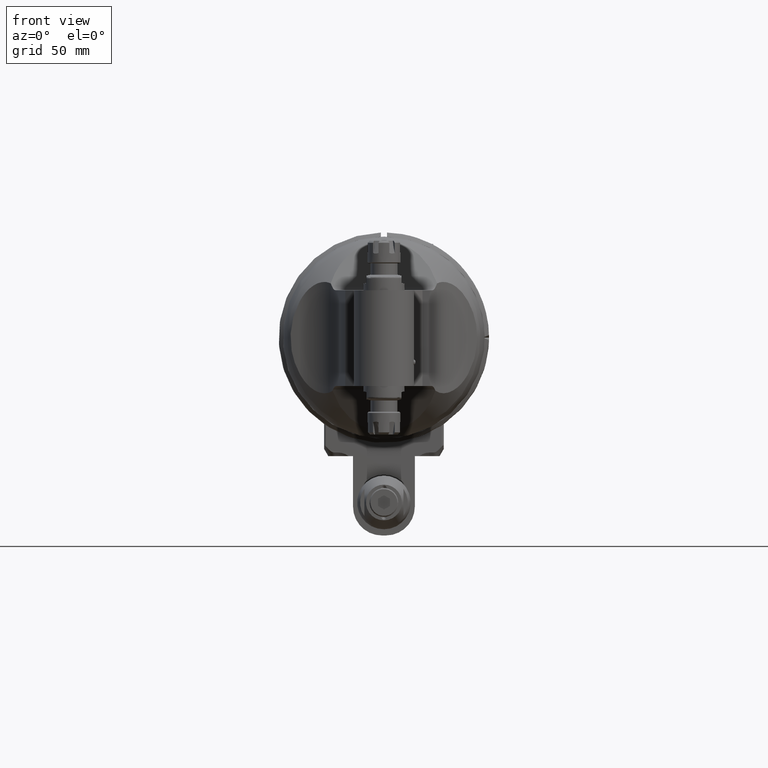
[diagram: clean part render]
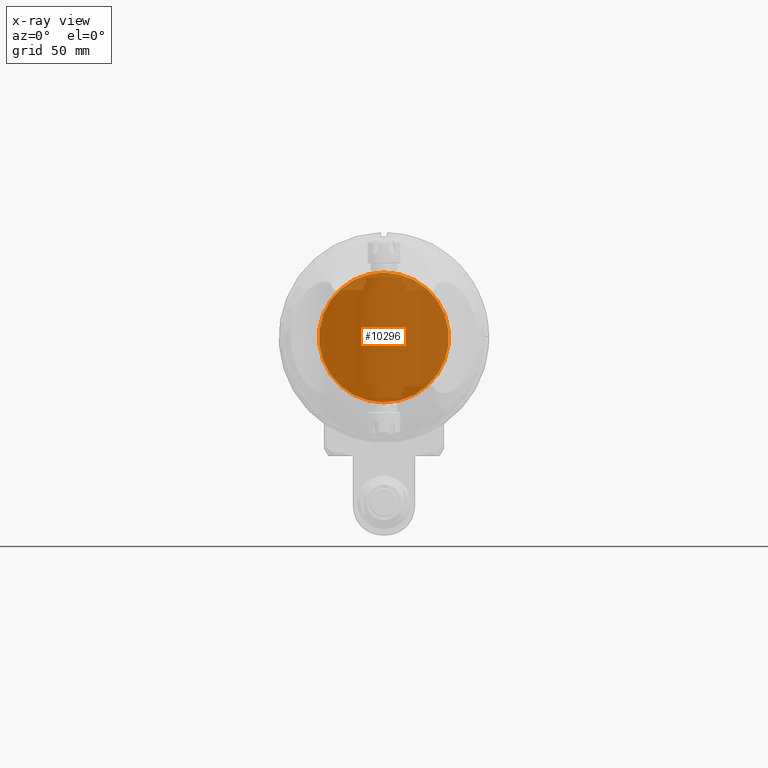
[diagram: x-ray — body ghosted, one internal face saturated and labeled with its STEP entity id]
A machine part, front view, then the same camera in x-ray: the body is ghosted and one INTERNAL B-rep face — a face not visible from any outside direction — is saturated and labeled: STEP entity #10296.
In plain terms, the highlighted planar face has unit normal (-0, 1, 0).
Its self-contained STEP definition (entity closure, byte-faithful):
#775=CIRCLE('',#11077,31.5);
#1368=FACE_OUTER_BOUND('',#2037,.T.);
#2037=EDGE_LOOP('',(#7182));
#4336=VERTEX_POINT('',#16010);
#5431=EDGE_CURVE('',#4336,#4336,#775,.T.);
#7182=ORIENTED_EDGE('',*,*,#5431,.T.);
#9973=PLANE('',#11078);
#10296=ADVANCED_FACE('',(#1368),#9973,.T.);
#11077=AXIS2_PLACEMENT_3D('',#16012,#12622,#12623);
#11078=AXIS2_PLACEMENT_3D('',#16013,#12624,#12625);
#12622=DIRECTION('center_axis',(0.,1.,0.));
#12623=DIRECTION('ref_axis',(0.,0.,1.));
#12624=DIRECTION('center_axis',(0.,1.,0.));
#12625=DIRECTION('ref_axis',(0.,0.,-1.));
#16010=CARTESIAN_POINT('',(0.,148.,-31.5));
#16012=CARTESIAN_POINT('Origin',(0.,148.,0.));
#16013=CARTESIAN_POINT('Origin',(0.,148.,-30.75));